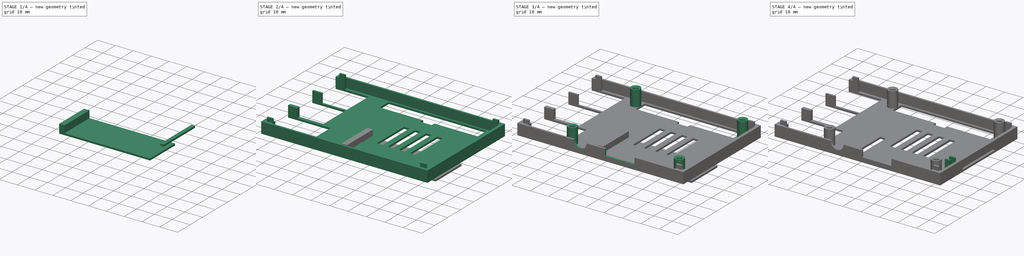
[diagram: build sequence overview — one tinted view per stage of 4, left to right]
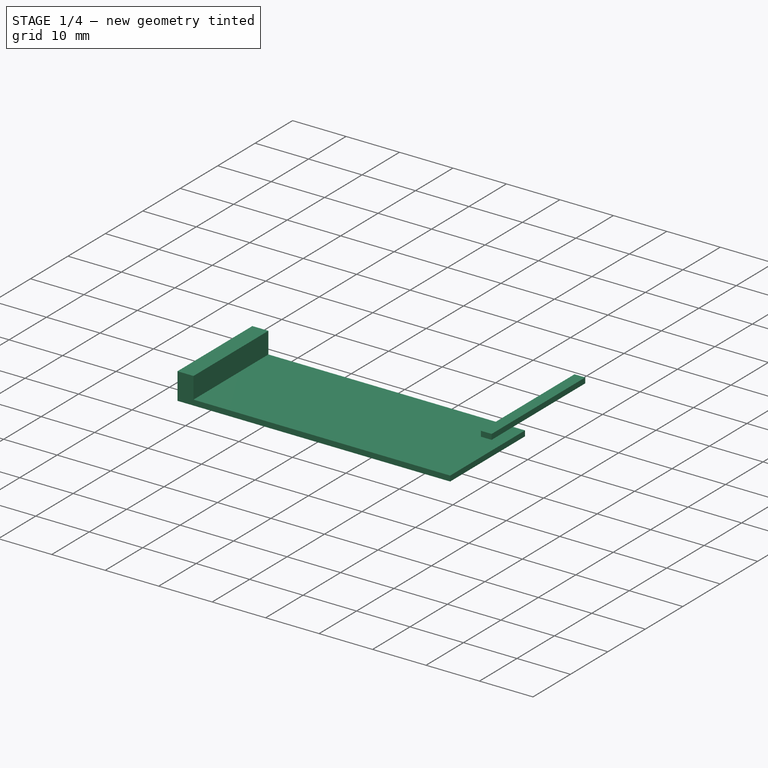
[diagram: stage 1 of 4 — iso view after this stage's code; geometry added in this stage tinted green]
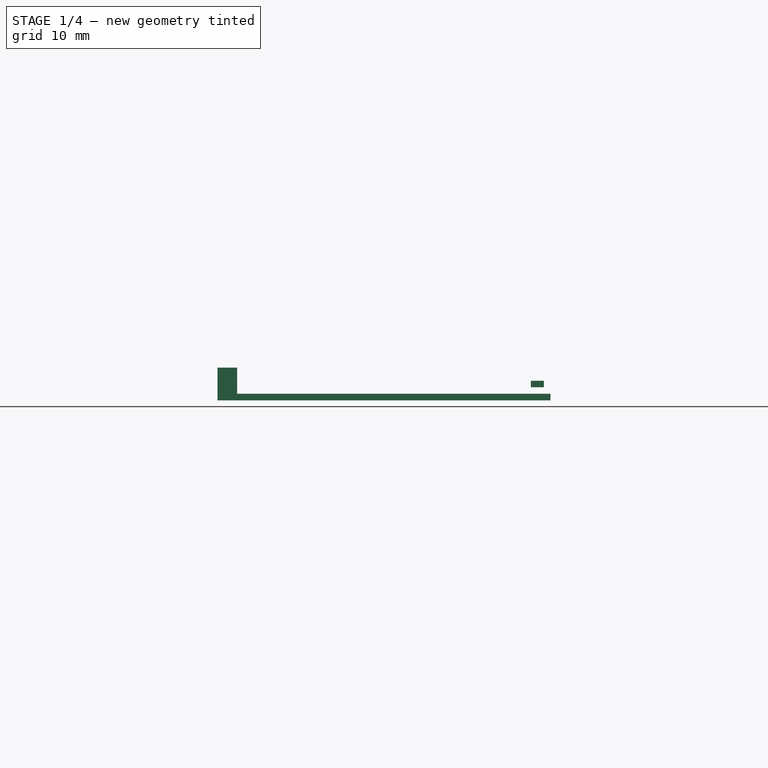
[diagram: stage 1 of 4 — front view after this stage's code; geometry added in this stage tinted green]
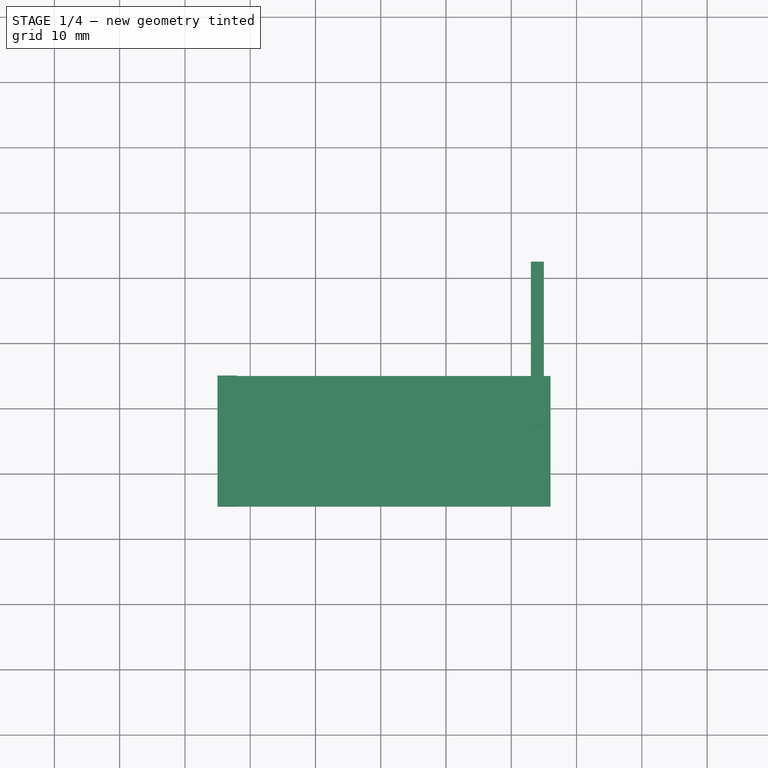
[diagram: stage 1 of 4 — top view after this stage's code; geometry added in this stage tinted green]
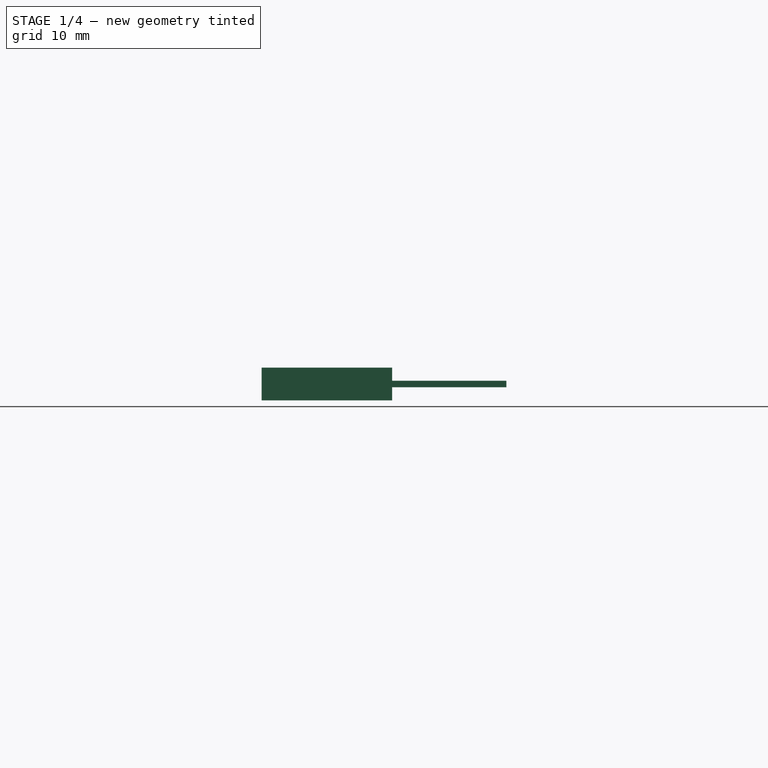
[diagram: stage 1 of 4 — right view after this stage's code; geometry added in this stage tinted green]
FCSTD DOCUMENT  (FreeCAD 0.19RUnknown)
Label: pi_top_with_ribbon_slot
License: All rights reserved
LicenseURL: http://en.wikipedia.org/wiki/All_rights_reserved
objects: Sketcher::SketchObject×6, PartDesign::Pad×5, Part::Box×3, Part::Cut×2, PartDesign::Pocket×1, PartDesign::Chamfer×1, Part::Fillet×1, Part::MultiFuse×1
note: 26 computed .brp shape members not serialized (recipe doc carries the construction recipe); baked Part::Feature solids carry a one-line shape summary decoded from their .brp

FEATURE [Part::Box] Box  label="Würfel"
  AttacherType = Attacher::AttachEngine3D
  Height = 1
  Length = 2
  Placement = pos=(43,-12.5,1) rot=(0,0,1;0rad)
  Width = 25
FEATURE [Part::Box] Box001  label="Würfel001"
  AttacherType = Attacher::AttachEngine3D
  Height = 1
  Length = 51
  Placement = pos=(-5,-25,-1) rot=(0,0,1;0rad)
  Width = 20
FEATURE [Part::Box] Box002  label="Würfel002"
  AttacherType = Attacher::AttachEngine3D
  Height = 5
  Length = 3
  Placement = pos=(-5,-25,-1) rot=(0,0,1;0rad)
  Width = 20
FEATURE [Part::MultiFuse] Fusion  label="wire channel"
  Shapes = -> [Box001,Box002]
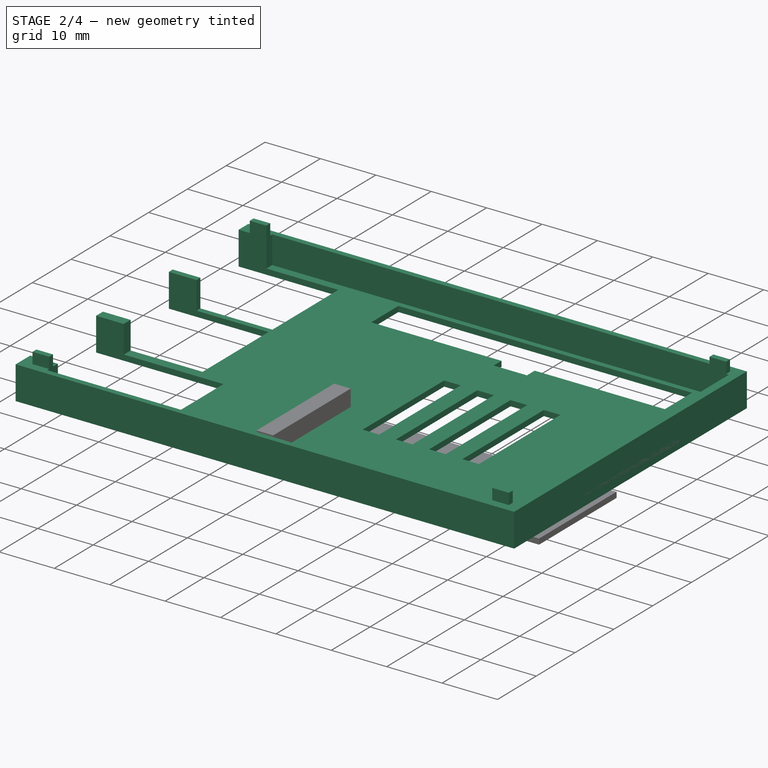
[diagram: stage 2 of 4 — iso view after this stage's code; geometry added in this stage tinted green]
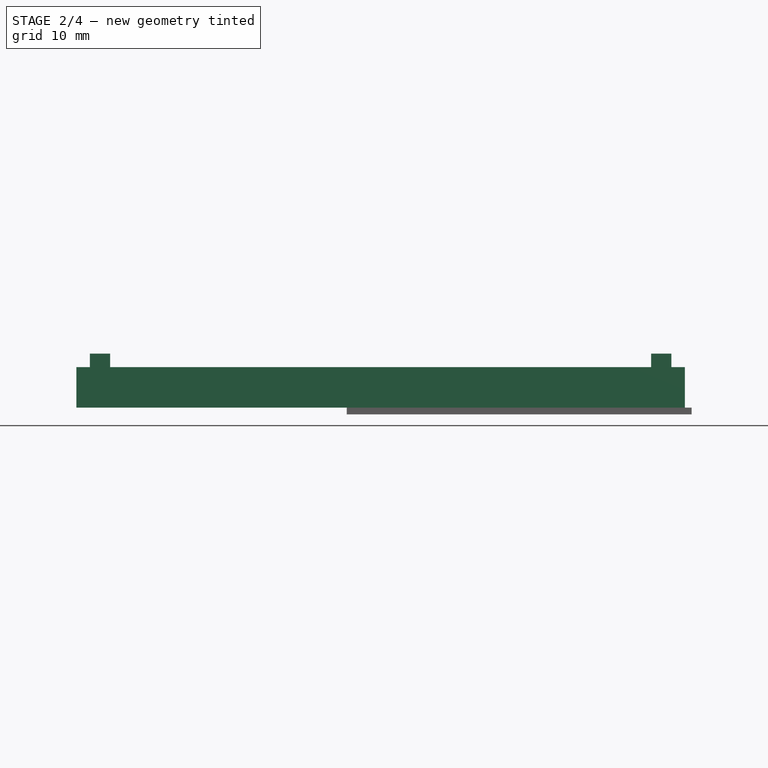
[diagram: stage 2 of 4 — front view after this stage's code; geometry added in this stage tinted green]
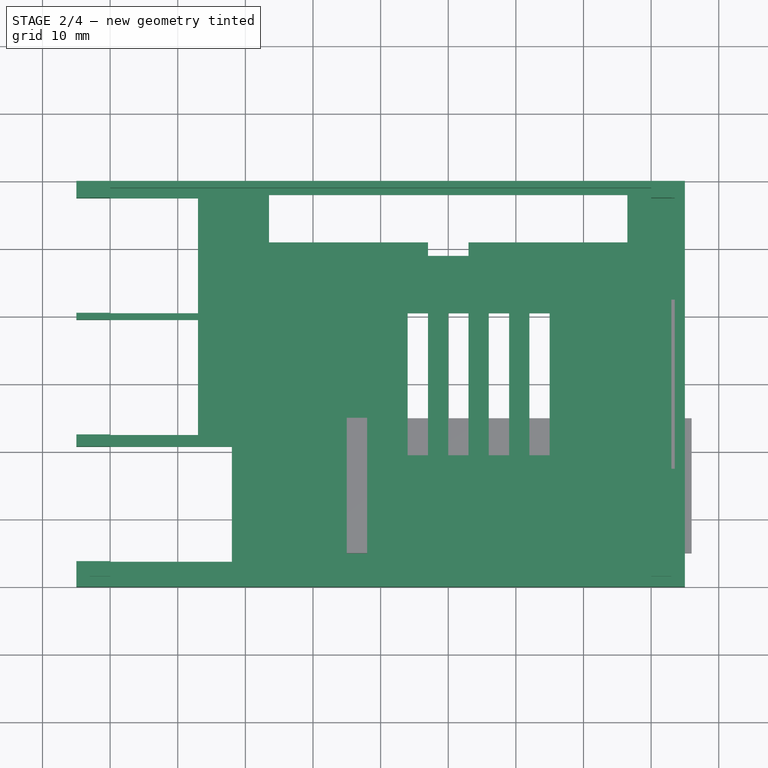
[diagram: stage 2 of 4 — top view after this stage's code; geometry added in this stage tinted green]
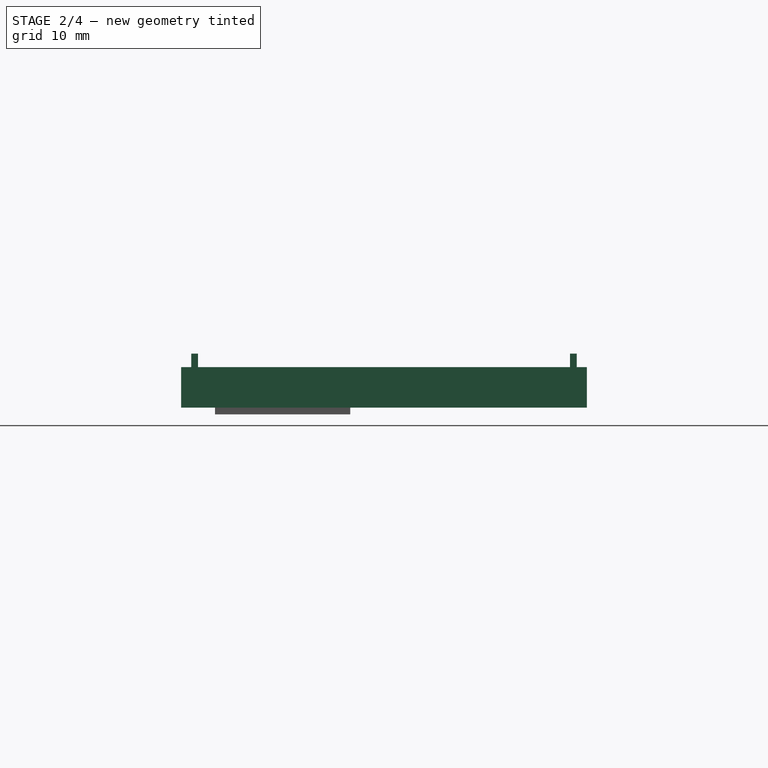
[diagram: stage 2 of 4 — right view after this stage's code; geometry added in this stage tinted green]
FEATURE [Sketcher::SketchObject] Sketch
  MapMode = 5
  sketch-geometry (59):
    g0: LineSegment StartX=-45 StartY=30 StartZ=0 EndX=45 EndY=30 EndZ=0
    g1: LineSegment StartX=45 StartY=30 StartZ=0 EndX=45 EndY=-30 EndZ=0
    g2: LineSegment StartX=45 StartY=-30 StartZ=0 EndX=-45 EndY=-30 EndZ=0
    g3: LineSegment StartX=36.5 StartY=21 StartZ=0 EndX=36.5 EndY=28 EndZ=0
    g4: LineSegment StartX=36.5 StartY=28 StartZ=0 EndX=-16.5 EndY=28 EndZ=0
    g5: LineSegment StartX=-16.5 StartY=28 StartZ=0 EndX=-16.5 EndY=21 EndZ=0
    g6: LineSegment StartX=4 StartY=10.5 StartZ=0 EndX=7 EndY=10.5 EndZ=0
    g7: LineSegment StartX=7 StartY=10.5 StartZ=0 EndX=7 EndY=-10.5 EndZ=0
    g8: LineSegment StartX=7 StartY=-10.5 StartZ=0 EndX=4 EndY=-10.5 EndZ=0
    g9: LineSegment StartX=4 StartY=-10.5 StartZ=0 EndX=4 EndY=10.5 EndZ=0
    g10: LineSegment StartX=10 StartY=10.5 StartZ=0 EndX=13 EndY=10.5 EndZ=0
    g11: LineSegment StartX=13 StartY=10.5 StartZ=0 EndX=13 EndY=-10.5 EndZ=0
    g12: LineSegment StartX=13 StartY=-10.5 StartZ=0 EndX=10 EndY=-10.5 EndZ=0
    g13: LineSegment StartX=10 StartY=-10.5 StartZ=0 EndX=10 EndY=10.5 EndZ=0
    g14: LineSegment StartX=16 StartY=10.5 StartZ=0 EndX=19 EndY=10.5 EndZ=0
    g15: LineSegment StartX=19 StartY=10.5 StartZ=0 EndX=19 EndY=-10.5 EndZ=0
    g16: LineSegment StartX=19 StartY=-10.5 StartZ=0 EndX=16 EndY=-10.5 EndZ=0
    g17: LineSegment StartX=16 StartY=-10.5 StartZ=0 EndX=16 EndY=10.5 EndZ=0
    g18: LineSegment StartX=22 StartY=10.5 StartZ=0 EndX=25 EndY=10.5 EndZ=0
    g19: LineSegment StartX=25 StartY=10.5 StartZ=0 EndX=25 EndY=-10.5 EndZ=0
    g20: LineSegment StartX=25 StartY=-10.5 StartZ=0 EndX=22 EndY=-10.5 EndZ=0
    g21: LineSegment StartX=22 StartY=-10.5 StartZ=0 EndX=22 EndY=10.5 EndZ=0
    g22: LineSegment StartX=-45 StartY=30 StartZ=0 EndX=-45 EndY=27.5 EndZ=0
    g23: LineSegment StartX=-45 StartY=27.5 StartZ=0 EndX=-27 EndY=27.5 EndZ=0
    g24: LineSegment StartX=-27 StartY=27.5 StartZ=0 EndX=-27 EndY=10.5 EndZ=0
    g25: LineSegment StartX=-27 StartY=10.5 StartZ=0 EndX=-45 EndY=10.5 EndZ=0
    g26: LineSegment StartX=-45 StartY=10.5 StartZ=0 EndX=-45 EndY=9.5 EndZ=0
    g27: LineSegment StartX=-45 StartY=9.5 StartZ=0 EndX=-27 EndY=9.5 EndZ=0
    g28: LineSegment StartX=-27 StartY=9.5 StartZ=0 EndX=-27 EndY=-7.5 EndZ=0
    g29: LineSegment StartX=-27 StartY=-7.5 StartZ=0 EndX=-45 EndY=-7.5 EndZ=0
    g30: LineSegment StartX=-45 StartY=-7.5 StartZ=0 EndX=-45 EndY=-9.25 EndZ=0
    g31: LineSegment StartX=-45 StartY=-9.25 StartZ=0 EndX=-22 EndY=-9.25 EndZ=0
    g32: LineSegment StartX=-22 StartY=-9.25 StartZ=0 EndX=-22 EndY=-26.25 EndZ=0
    g33: LineSegment StartX=-22 StartY=-26.25 StartZ=0 EndX=-45 EndY=-26.25 EndZ=0
    g34: LineSegment StartX=-45 StartY=-26.25 StartZ=0 EndX=-45 EndY=-30 EndZ=0
    g35: LineSegment [constr] StartX=-45 StartY=27.5 StartZ=0 EndX=-45 EndY=10.5 EndZ=0
    g36: LineSegment [constr] StartX=-45 StartY=9.5 StartZ=0 EndX=-45 EndY=-7.5 EndZ=0
    g37: LineSegment [constr] StartX=-45 StartY=-9.25 StartZ=0 EndX=-45 EndY=-26.25 EndZ=0
    g38: GeomPoint [constr] X=-45 Y=19 Z=0
    g39: GeomPoint [constr] X=-45 Y=1 Z=0
    g40: LineSegment [constr] StartX=-27 StartY=10.5 StartZ=0 EndX=-27 EndY=9.5 EndZ=0
    g41: GeomPoint [constr] X=-45 Y=-28 Z=0
    g42: GeomPoint [constr] X=-45 Y=-17.75 Z=0
    g43: GeomPoint [constr] X=10 Y=28 Z=0
    g44: LineSegment [constr] StartX=7 StartY=10.5 StartZ=0 EndX=10 EndY=10.5 EndZ=0
    g45: LineSegment [constr] StartX=13 StartY=10.5 StartZ=0 EndX=16 EndY=10.5 EndZ=0
    g46: LineSegment [constr] StartX=19 StartY=10.5 StartZ=0 EndX=22 EndY=10.5 EndZ=0
    g47: LineSegment [constr] StartX=7 StartY=-10.5 StartZ=0 EndX=10 EndY=-10.5 EndZ=0
    g48: LineSegment [constr] StartX=13 StartY=-10.5 StartZ=0 EndX=16 EndY=-10.5 EndZ=0
    g49: LineSegment [constr] StartX=19 StartY=-10.5 StartZ=0 EndX=22 EndY=-10.5 EndZ=0
    g50: GeomPoint [constr] X=25 Y=0 Z=0
    g51: GeomPoint [constr] X=36.5 Y=24.5 Z=0
    g52: LineSegment StartX=-16.5 StartY=21 StartZ=0 EndX=7 EndY=21 EndZ=0
    g53: LineSegment StartX=7 StartY=21 StartZ=0 EndX=7 EndY=19 EndZ=0
    g54: LineSegment StartX=7 StartY=19 StartZ=0 EndX=13 EndY=19 EndZ=0
    g55: LineSegment StartX=13 StartY=19 StartZ=0 EndX=13 EndY=21 EndZ=0
    g56: LineSegment StartX=13 StartY=21 StartZ=0 EndX=36.5 EndY=21 EndZ=0
    g57: LineSegment [constr] StartX=7 StartY=21 StartZ=0 EndX=13 EndY=21 EndZ=0
    g58: GeomPoint [constr] X=10 Y=21 Z=0
  constraints (158):
    c: Coincident(g0,g1)
    c: Coincident(g1,g2)
    c: Horizontal(g0)
    c: Horizontal(g2)
    c: Vertical(g1)
    c: Coincident(g3,g4)
    c: Coincident(g4,g5)
    c: Horizontal(g4)
    c: Vertical(g3)
    c: Vertical(g5)
    c: Coincident(g6,g7)
    c: Coincident(g7,g8)
    c: Coincident(g8,g9)
    c: Coincident(g9,g6)
    c: Horizontal(g6)
    c: Horizontal(g8)
    c: Vertical(g7)
    c: Vertical(g9)
    c: Coincident(g10,g11)
    c: Coincident(g11,g12)
    c: Coincident(g12,g13)
    c: Coincident(g13,g10)
    c: Horizontal(g10)
    c: Horizontal(g12)
    c: Vertical(g11)
    c: Vertical(g13)
    c: Coincident(g14,g15)
    c: Coincident(g15,g16)
    c: Coincident(g16,g17)
    c: Coincident(g17,g14)
    c: Horizontal(g14)
    c: Horizontal(g16)
    c: Vertical(g15)
    c: Vertical(g17)
    c: Coincident(g18,g19)
    c: Coincident(g19,g20)
    c: Coincident(g20,g21)
    c: Coincident(g21,g18)
    c: Horizontal(g18)
    c: Horizontal(g20)
    c: Vertical(g19)
    c: Vertical(g21)
    c: Coincident(g22,g0)
    c: Vertical(g22)
    c: Coincident(g23,g22)
    c: Horizontal(g23)
    c: Vertical(g24)
    c: Horizontal(g25)
    c: Vertical(g26)
    c: Horizontal(g27)
    c: Vertical(g28)
    c: Horizontal(g29)
    c: Vertical(g30)
    c: Horizontal(g31)
    c: Vertical(g32)
    c: Horizontal(g33)
    c: Coincident(g34,g2)
    c: Vertical(g34)
    c: Coincident(g35,g22)
    c: Coincident(g35,g25)
    c: Vertical(g35)
    c: Coincident(g36,g26)
    c: Coincident(g36,g29)
    c: Vertical(g36)
    c: Coincident(g37,g30)
    c: Coincident(g37,g33)
    c: Vertical(g37)
    c: Coincident(g33,g34)
    c: Coincident(g30,g29)
    c: Coincident(g30,g31)
    c: Coincident(g26,g27)
    c: Coincident(g26,g25)
    c: Coincident(g33,g32)
    c: Coincident(g31,g32)
    c: Coincident(g29,g28)
    c: Coincident(g27,g28)
    c: Coincident(g23,g24)
    c: Coincident(g25,g24)
    c: DistanceX(g0,g0) = 90
    c: DistanceY(g1,g0) = 60
    c: Symmetric(g0,g0,g-2)
    c: Symmetric(g0,g1,g-1)
    c: PointOnObject(g38,g35)
    c: PointOnObject(g39,g36)
    c: Symmetric(g22,g25,g38)
    c: Symmetric(g26,g29,g39)
    c: DistanceY(g24,g23) = 17
    c: DistanceY(g28,g27) = 17
    c: DistanceY(g32,g31) = 17
    c: DistanceX(g33,g32) = 23
    c: Coincident(g40,g24)
    c: Coincident(g40,g27)
    c: Vertical(g40)
    c: DistanceX(g25,g24) = 18
    c: PointOnObject(g41,g34)
    c: DistanceY(g2,g41) = 2
    c: PointOnObject(g42,g37)
    c: Symmetric(g30,g33,g42)
    c: DistanceY(g41,g42) = 10.25
    c: DistanceY(g41,g39) = 29
    c: DistanceY(g41,g38) = 47
    c: DistanceX(g4,g3) = 53
    c: DistanceY(g5,g4) = 7
    c: PointOnObject(g43,g4)
    c: Symmetric(g4,g3,g43)
    c: DistanceX(g43,g0) = 35
    c: DistanceX(g6,g6) = 3
    c: DistanceX(g10,g10) = 3
    c: DistanceX(g14,g14) = 3
    c: DistanceX(g18,g18) = 3
    c: Coincident(g44,g6)
    c: Coincident(g44,g10)
    c: Coincident(g45,g10)
    c: Coincident(g45,g14)
    c: Coincident(g46,g14)
    c: Coincident(g46,g18)
    c: Coincident(g47,g7)
    c: Coincident(g47,g12)
    c: Coincident(g48,g11)
    c: Coincident(g48,g16)
    c: Coincident(g49,g15)
    c: Coincident(g49,g20)
    c: Horizontal(g47)
    c: Horizontal(g48)
    c: Horizontal(g49)
    c: Horizontal(g46)
    c: Horizontal(g45)
    c: Horizontal(g44)
    c: DistanceX(g6,g10) = 3
    c: DistanceX(g10,g14) = 3
    c: DistanceX(g14,g18) = 3
    c: DistanceY(g19,g18) = 21
    c: PointOnObject(g50,g19)
    c: Symmetric(g18,g19,g50)
    c: PointOnObject(g50,g-1)
    c: DistanceX(g50,g1) = 20
    c: PointOnObject(g51,g3)
    c: Symmetric(g3,g3,g51)
    c: DistanceY(g51,g0) = 5.5
    c: Coincident(g52,g5)
    c: Horizontal(g52)
    c: Coincident(g53,g52)
    c: Coincident(g54,g53)
    c: Horizontal(g54)
    c: Coincident(g55,g54)
    c: Coincident(g56,g55)
    c: Coincident(g56,g3)
    c: Horizontal(g56)
    c: Vertical(g53)
    c: Vertical(g55)
    c: Coincident(g57,g52)
    c: Coincident(g57,g55)
    c: Horizontal(g57)
    c: PointOnObject(g58,g57)
    c: Symmetric(g52,g55,g58)
    c: DistanceX(g53,g54) = 6
    c: DistanceY(g53,g52) = 2
    c: Symmetric(g5,g3,g58)
FEATURE [PartDesign::Pad] Pad
  Length = 1
  Length2 = 100
  Profile = -> Sketch
  Type = 0
FEATURE [Sketcher::SketchObject] Sketch001
  MapMode = 5
  Placement = pos=(0,0,1) rot=(0,0,1;0rad)
  Support = -> [Pad]
  sketch-geometry (34):
    g0: LineSegment StartX=-45 StartY=-7.5 StartZ=0 EndX=-40 EndY=-7.5 EndZ=0
    g1: LineSegment StartX=-40 StartY=-7.5 StartZ=0 EndX=-40 EndY=-9.25 EndZ=0
    g2: LineSegment StartX=-40 StartY=-9.25 StartZ=0 EndX=-45 EndY=-9.25 EndZ=0
    g3: LineSegment StartX=-45 StartY=-9.25 StartZ=0 EndX=-45 EndY=-7.5 EndZ=0
    g4: LineSegment StartX=-45 StartY=10.5 StartZ=0 EndX=-40 EndY=10.5 EndZ=0
    g5: LineSegment StartX=-40 StartY=10.5 StartZ=0 EndX=-40 EndY=9.5 EndZ=0
    g6: LineSegment StartX=-40 StartY=9.5 StartZ=0 EndX=-45 EndY=9.5 EndZ=0
    g7: LineSegment StartX=-45 StartY=9.5 StartZ=0 EndX=-45 EndY=10.5 EndZ=0
    g8: LineSegment StartX=-45 StartY=30 StartZ=0 EndX=45 EndY=30 EndZ=0
    g9: LineSegment StartX=45 StartY=30 StartZ=0 EndX=45 EndY=-30 EndZ=0
    g10: LineSegment StartX=45 StartY=-30 StartZ=0 EndX=-45 EndY=-30 EndZ=0
    g11: LineSegment StartX=-45 StartY=-30 StartZ=0 EndX=-45 EndY=-26.25 EndZ=0
    g12: LineSegment StartX=-45 StartY=-26.25 StartZ=0 EndX=-40 EndY=-26.25 EndZ=0
    g13: LineSegment StartX=-40 StartY=-26.25 StartZ=0 EndX=-40 EndY=-29 EndZ=0
    g14: LineSegment StartX=-40 StartY=-29 StartZ=0 EndX=40 EndY=-29 EndZ=0
    g15: LineSegment StartX=40 StartY=29 StartZ=0 EndX=-40 EndY=29 EndZ=0
    g16: LineSegment StartX=-40 StartY=29 StartZ=0 EndX=-40 EndY=27.5 EndZ=0
    g17: LineSegment StartX=-40 StartY=27.5 StartZ=0 EndX=-45 EndY=27.5 EndZ=0
    g18: LineSegment StartX=-45 StartY=27.5 StartZ=0 EndX=-45 EndY=30 EndZ=0
    g19: LineSegment [constr] StartX=-45 StartY=27.5 StartZ=0 EndX=-45 EndY=10.5 EndZ=0
    g20: LineSegment [constr] StartX=-45 StartY=9.5 StartZ=0 EndX=-45 EndY=-7.5 EndZ=0
    g21: LineSegment [constr] StartX=-45 StartY=-9.25 StartZ=0 EndX=-45 EndY=-26.25 EndZ=0
    g22: LineSegment [constr] StartX=-40 StartY=27.5 StartZ=0 EndX=-40 EndY=10.5 EndZ=0
    g23: LineSegment [constr] StartX=-40 StartY=9.5 StartZ=0 EndX=-40 EndY=-7.5 EndZ=0
    g24: LineSegment [constr] StartX=-40 StartY=-9.25 StartZ=0 EndX=-40 EndY=-26.25 EndZ=0
    g25: GeomPoint [constr] X=-45 Y=19 Z=0
    g26: GeomPoint [constr] X=-45 Y=1 Z=0
    g27: GeomPoint [constr] X=-45 Y=-17.75 Z=0
    g28: GeomPoint [constr] X=-45 Y=-28 Z=0
    g29: LineSegment StartX=40 StartY=29 StartZ=0 EndX=40 EndY=27.5 EndZ=0
    g30: LineSegment StartX=40 StartY=27.5 StartZ=0 EndX=43.5 EndY=27.5 EndZ=0
    g31: LineSegment StartX=43.5 StartY=27.5 StartZ=0 EndX=43.5 EndY=-27.5 EndZ=0
    g32: LineSegment StartX=43.5 StartY=-27.5 StartZ=0 EndX=40 EndY=-27.5 EndZ=0
    g33: LineSegment StartX=40 StartY=-27.5 StartZ=0 EndX=40 EndY=-29 EndZ=0
  constraints (91):
    c: Coincident(g0,g1)
    c: Coincident(g1,g2)
    c: Coincident(g2,g3)
    c: Coincident(g3,g0)
    c: Horizontal(g0)
    c: Horizontal(g2)
    c: Vertical(g1)
    c: Vertical(g3)
    c: Coincident(g4,g5)
    c: Coincident(g5,g6)
    c: Coincident(g6,g7)
    c: Coincident(g7,g4)
    c: Horizontal(g4)
    c: Horizontal(g6)
    c: Vertical(g5)
    c: Vertical(g7)
    c: Horizontal(g8)
    c: Coincident(g8,g9)
    c: Vertical(g9)
    c: Coincident(g9,g10)
    c: Horizontal(g10)
    c: Coincident(g10,g11)
    c: Vertical(g11)
    c: Coincident(g11,g12)
    c: Horizontal(g12)
    c: Coincident(g12,g13)
    c: Vertical(g13)
    c: Coincident(g13,g14)
    c: Horizontal(g14)
    c: Horizontal(g15)
    c: Coincident(g15,g16)
    c: Vertical(g16)
    c: Coincident(g16,g17)
    c: Horizontal(g17)
    c: Coincident(g17,g18)
    c: Coincident(g18,g8)
    c: Vertical(g18)
    c: DistanceX(g8,g8) = 90
    c: DistanceY(g9,g8) = 60
    c: Symmetric(g8,g8,g-2)
    c: Symmetric(g8,g9,g-1)
    c: Coincident(g19,g17)
    c: Coincident(g19,g4)
    c: Vertical(g19)
    c: Coincident(g20,g6)
    c: Coincident(g20,g0)
    c: Vertical(g20)
    c: Coincident(g21,g2)
    c: Coincident(g21,g11)
    c: Vertical(g21)
    c: Coincident(g22,g16)
    c: Coincident(g22,g4)
    c: Coincident(g23,g5)
    c: Coincident(g23,g0)
    c: Coincident(g24,g1)
    c: Coincident(g24,g12)
    c: Vertical(g22)
    c: Vertical(g23)
    c: Vertical(g24)
    c: DistanceY(g15,g8) = 1
    c: DistanceX(g8,g15) = 5
    c: Symmetric(g15,g15,g-2)
    c: Symmetric(g15,g14,g-1)
    c: PointOnObject(g25,g19)
    c: PointOnObject(g26,g20)
    c: PointOnObject(g27,g21)
    c: PointOnObject(g28,g11)
    c: DistanceY(g10,g28) = 2
    c: Symmetric(g2,g11,g27)
    c: DistanceY(g28,g27) = 10.25
    c: DistanceY(g11,g2) = 17
    c: Symmetric(g6,g0,g26)
    c: DistanceY(g0,g6) = 17
    c: DistanceY(g28,g26) = 29
    c: Symmetric(g17,g4,g25)
    c: DistanceY(g4,g17) = 17
    c: DistanceY(g28,g25) = 47
    c: Coincident(g29,g15)
    c: Vertical(g29)
    c: Coincident(g30,g29)
    c: Coincident(g30,g31)
    c: Vertical(g31)
    c: Coincident(g31,g32)
    c: Horizontal(g32)
    c: Coincident(g32,g33)
    c: Coincident(g33,g14)
    c: Vertical(g33)
    c: DistanceX(g32,g31) = 3.5
    c: Horizontal(g30)
    c: Symmetric(g31,g30,g-1)
    c: DistanceY(g29,g15) = 1.5
FEATURE [PartDesign::Pad] Pad001
  Length = 5
  Length2 = 100
  Profile = -> Sketch001
  Type = 0
FEATURE [Sketcher::SketchObject] Sketch002
  MapMode = 5
  Placement = pos=(0,0,6) rot=(0,0,1;0rad)
  Support = -> [Pad001]
  sketch-geometry (24):
    g0: LineSegment StartX=40 StartY=28.5 StartZ=0 EndX=43 EndY=28.5 EndZ=0
    g1: LineSegment StartX=43 StartY=28.5 StartZ=0 EndX=43 EndY=27.5 EndZ=0
    g2: LineSegment StartX=43 StartY=27.5 StartZ=0 EndX=40 EndY=27.5 EndZ=0
    g3: LineSegment StartX=40 StartY=27.5 StartZ=0 EndX=40 EndY=28.5 EndZ=0
    g4: LineSegment StartX=-43 StartY=28.5 StartZ=0 EndX=-40 EndY=28.5 EndZ=0
    g5: LineSegment StartX=-40 StartY=28.5 StartZ=0 EndX=-40 EndY=27.5 EndZ=0
    g6: LineSegment StartX=-40 StartY=27.5 StartZ=0 EndX=-43 EndY=27.5 EndZ=0
    g7: LineSegment StartX=-43 StartY=27.5 StartZ=0 EndX=-43 EndY=28.5 EndZ=0
    g8: LineSegment StartX=-43 StartY=-27.5 StartZ=0 EndX=-40 EndY=-27.5 EndZ=0
    g9: LineSegment StartX=-40 StartY=-27.5 StartZ=0 EndX=-40 EndY=-28.5 EndZ=0
    g10: LineSegment StartX=-40 StartY=-28.5 StartZ=0 EndX=-43 EndY=-28.5 EndZ=0
    g11: LineSegment StartX=-43 StartY=-28.5 StartZ=0 EndX=-43 EndY=-27.5 EndZ=0
    g12: LineSegment StartX=40 StartY=-27.5 StartZ=0 EndX=43 EndY=-27.5 EndZ=0
    g13: LineSegment StartX=43 StartY=-27.5 StartZ=0 EndX=43 EndY=-28.5 EndZ=0
    g14: LineSegment StartX=43 StartY=-28.5 StartZ=0 EndX=40 EndY=-28.5 EndZ=0
    g15: LineSegment StartX=40 StartY=-28.5 StartZ=0 EndX=40 EndY=-27.5 EndZ=0
    g16: LineSegment [constr] StartX=-40 StartY=28.5 StartZ=0 EndX=40 EndY=28.5 EndZ=0
    g17: LineSegment [constr] StartX=43 StartY=27.5 StartZ=0 EndX=43 EndY=-27.5 EndZ=0
    g18: LineSegment [constr] StartX=40 StartY=-28.5 StartZ=0 EndX=-40 EndY=-28.5 EndZ=0
    g19: LineSegment [constr] StartX=-43 StartY=-27.5 StartZ=0 EndX=-43 EndY=27.5 EndZ=0
    g20: LineSegment [constr] StartX=-40 StartY=27.5 StartZ=0 EndX=40 EndY=27.5 EndZ=0
    g21: LineSegment [constr] StartX=40 StartY=27.5 StartZ=0 EndX=40 EndY=-27.5 EndZ=0
    g22: LineSegment [constr] StartX=40 StartY=-27.5 StartZ=0 EndX=-40 EndY=-27.5 EndZ=0
    g23: LineSegment [constr] StartX=-40 StartY=27.5 StartZ=0 EndX=-40 EndY=-27.5 EndZ=0
  constraints (64):
    c: Coincident(g0,g1)
    c: Coincident(g1,g2)
    c: Coincident(g2,g3)
    c: Coincident(g3,g0)
    c: Horizontal(g0)
    c: Horizontal(g2)
    c: Vertical(g1)
    c: Vertical(g3)
    c: Coincident(g4,g5)
    c: Coincident(g5,g6)
    c: Coincident(g6,g7)
    c: Coincident(g7,g4)
    c: Horizontal(g4)
    c: Horizontal(g6)
    c: Vertical(g5)
    c: Vertical(g7)
    c: Coincident(g8,g9)
    c: Coincident(g9,g10)
    c: Coincident(g10,g11)
    c: Coincident(g11,g8)
    c: Horizontal(g8)
    c: Horizontal(g10)
    c: Vertical(g9)
    c: Vertical(g11)
    c: Coincident(g12,g13)
    c: Coincident(g13,g14)
    c: Coincident(g14,g15)
    c: Coincident(g15,g12)
    c: Horizontal(g12)
    c: Horizontal(g14)
    c: Vertical(g13)
    c: Vertical(g15)
    c: Coincident(g16,g4)
    c: Coincident(g16,g0)
    c: Horizontal(g16)
    c: Coincident(g17,g1)
    c: Coincident(g17,g12)
    c: Vertical(g17)
    c: Coincident(g18,g14)
    c: Coincident(g18,g9)
    c: Horizontal(g18)
    c: Coincident(g19,g6)
    c: Vertical(g19)
    c: Coincident(g20,g5)
    c: Coincident(g20,g2)
    c: Horizontal(g20)
    c: Coincident(g21,g2)
    c: Coincident(g21,g12)
    c: Vertical(g21)
    c: Coincident(g22,g12)
    c: Coincident(g22,g8)
    c: Horizontal(g22)
    c: Coincident(g23,g5)
    c: Coincident(g23,g8)
    c: Vertical(g23)
    c: Coincident(g8,g19)
    c: Symmetric(g5,g2,g-2)
    c: Symmetric(g5,g8,g-1)
    c: Symmetric(g4,g0,g-2)
    c: Symmetric(g4,g10,g-1)
    c: DistanceX(g4,g4) = 3
    c: DistanceY(g6,g4) = 1
    c: DistanceX(g5,g-1) = 40
    c: DistanceY(g-1,g5) = 27.5
FEATURE [PartDesign::Pad] Pad002
  Length = 2
  Length2 = 100
  Profile = -> Sketch002
  Type = 0
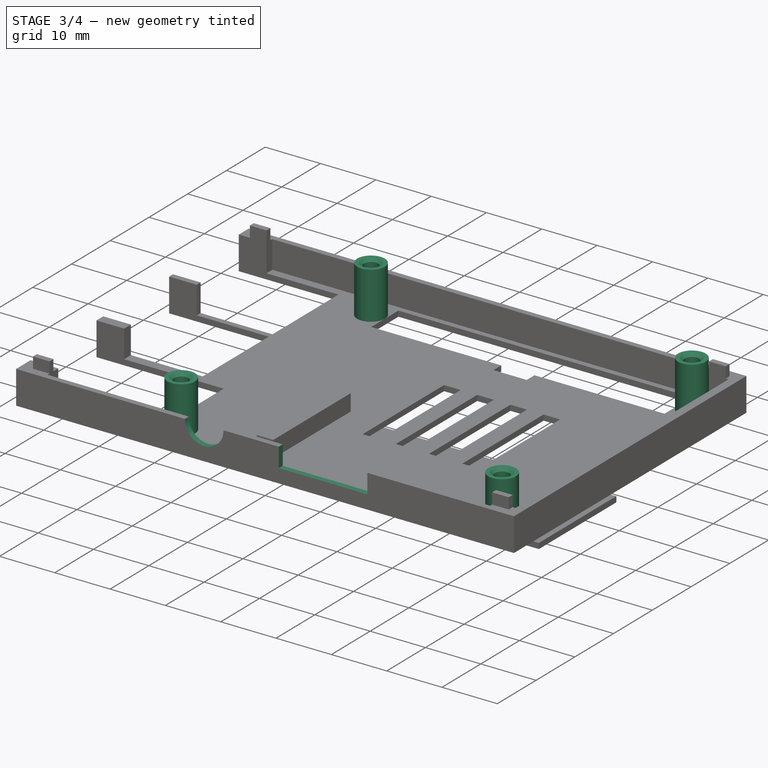
[diagram: stage 3 of 4 — iso view after this stage's code; geometry added in this stage tinted green]
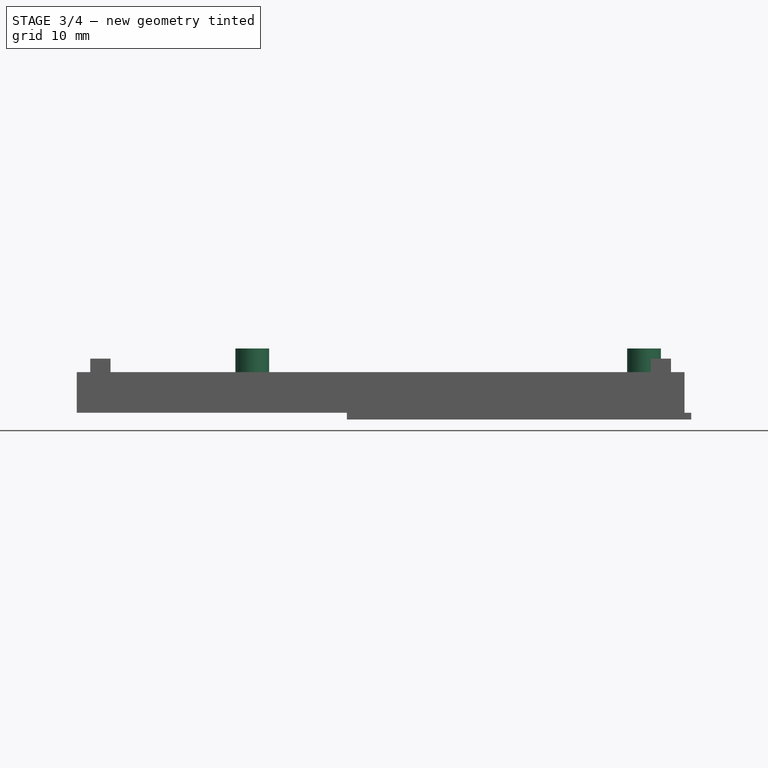
[diagram: stage 3 of 4 — front view after this stage's code; geometry added in this stage tinted green]
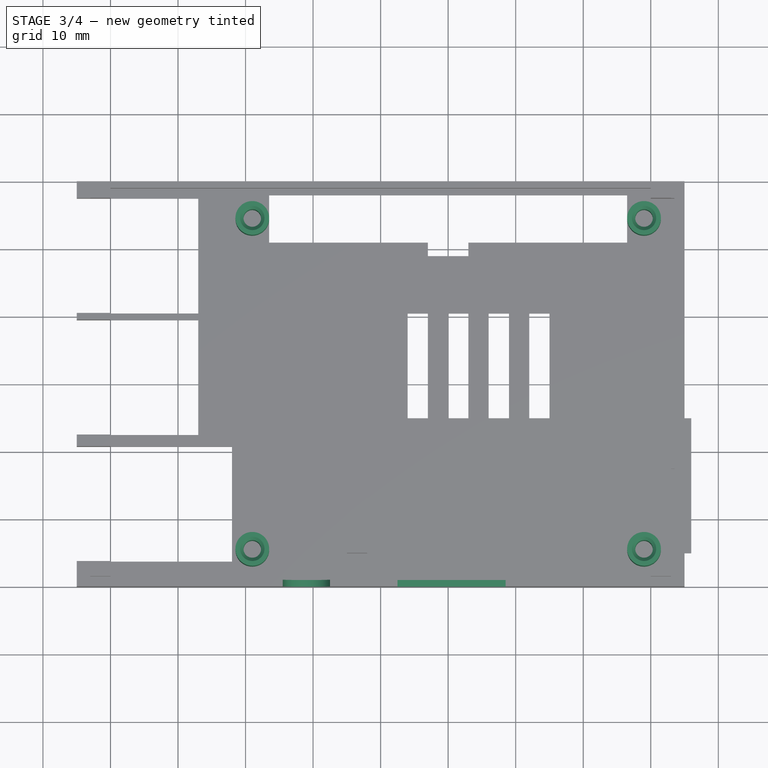
[diagram: stage 3 of 4 — top view after this stage's code; geometry added in this stage tinted green]
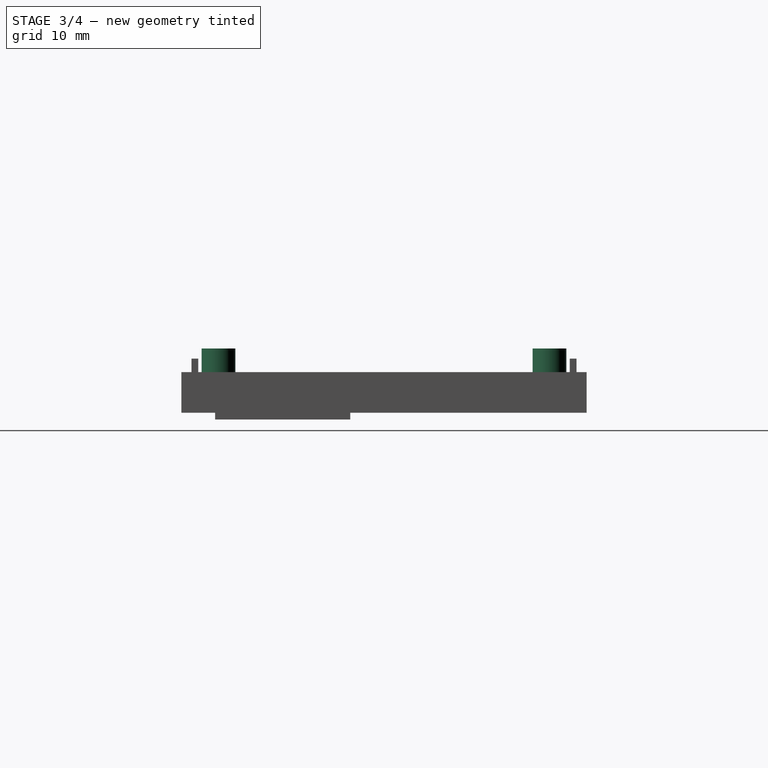
[diagram: stage 3 of 4 — right view after this stage's code; geometry added in this stage tinted green]
FEATURE [Sketcher::SketchObject] Sketch003
  MapMode = 5
  Placement = pos=(0,0,1) rot=(0,0,1;0rad)
  Support = -> [Pad002]
  sketch-geometry (12):
    g0: Circle CenterX=-19 CenterY=24.5 CenterZ=0 NormalX=0 NormalY=0 NormalZ=1 AngleXU=0 Radius=2.5
    g1: Circle CenterX=39 CenterY=24.5 CenterZ=0 NormalX=0 NormalY=0 NormalZ=1 AngleXU=0 Radius=2.5
    g2: Circle CenterX=-19 CenterY=-24.5 CenterZ=0 NormalX=0 NormalY=0 NormalZ=1 AngleXU=0 Radius=2.5
    g3: Circle CenterX=39 CenterY=-24.5 CenterZ=0 NormalX=0 NormalY=0 NormalZ=1 AngleXU=0 Radius=2.5
    g4: LineSegment [constr] StartX=-19 StartY=24.5 StartZ=0 EndX=39 EndY=24.5 EndZ=0
    g5: LineSegment [constr] StartX=39 StartY=24.5 StartZ=0 EndX=39 EndY=-24.5 EndZ=0
    g6: LineSegment [constr] StartX=39 StartY=-24.5 StartZ=0 EndX=-19 EndY=-24.5 EndZ=0
    g7: LineSegment [constr] StartX=-19 StartY=-24.5 StartZ=0 EndX=-19 EndY=24.5 EndZ=0
    g8: Circle CenterX=-19 CenterY=24.5 CenterZ=0 NormalX=0 NormalY=0 NormalZ=1 AngleXU=0 Radius=1.3
    g9: Circle CenterX=39 CenterY=24.5 CenterZ=0 NormalX=0 NormalY=0 NormalZ=1 AngleXU=0 Radius=1.3
    g10: Circle CenterX=39 CenterY=-24.5 CenterZ=0 NormalX=0 NormalY=0 NormalZ=1 AngleXU=0 Radius=1.3
    g11: Circle CenterX=-19 CenterY=-24.5 CenterZ=0 NormalX=0 NormalY=0 NormalZ=1 AngleXU=0 Radius=1.3
  constraints (28):
    c: Coincident(g4,g5)
    c: Coincident(g5,g6)
    c: Coincident(g6,g7)
    c: Coincident(g7,g4)
    c: Horizontal(g4)
    c: Horizontal(g6)
    c: Vertical(g5)
    c: Vertical(g7)
    c: Coincident(g4,g0)
    c: Coincident(g5,g3)
    c: Coincident(g4,g1)
    c: Coincident(g2,g6)
    c: Symmetric(g1,g3,g-1)
    c: DistanceX(g2,g3) = 58
    c: DistanceY(g-1,g1) = 24.5
    c: Radius(g0) = 2.5
    c: Equal(g0,g1)
    c: Equal(g0,g3)
    c: Equal(g0,g2)
    c: DistanceX(g-1,g1) = 39
    c: Coincident(g8,g0)
    c: Coincident(g9,g1)
    c: Coincident(g10,g3)
    c: Coincident(g11,g2)
    c: Radius(g8) = 1.3
    c: Equal(g8,g9)
    c: Equal(g8,g10)
    c: Equal(g8,g11)
FEATURE [PartDesign::Pad] Pad003
  Length = 8.5
  Length2 = 100
  Profile = -> Sketch003
  Type = 0
FEATURE [Sketcher::SketchObject] Sketch004
  MapMode = 5
  Placement = pos=(0,-30,0) rot=(1,0,0;1.5708rad)
  Support = -> [Pad003]
  sketch-geometry (6):
    g0: ArcOfCircle CenterX=-11 CenterY=6 CenterZ=0 NormalX=0 NormalY=0 NormalZ=1 AngleXU=0 Radius=3.5 StartAngle=3.14159 EndAngle=6.28319
    g1: LineSegment StartX=-14.5 StartY=6 StartZ=0 EndX=-7.5 EndY=6 EndZ=0
    g2: LineSegment StartX=2.5 StartY=6 StartZ=0 EndX=18.5 EndY=6 EndZ=0
    g3: LineSegment StartX=18.5 StartY=6 StartZ=0 EndX=18.5 EndY=2.5 EndZ=0
    g4: LineSegment StartX=18.5 StartY=2.5 StartZ=0 EndX=2.5 EndY=2.5 EndZ=0
    g5: LineSegment StartX=2.5 StartY=2.5 StartZ=0 EndX=2.5 EndY=6 EndZ=0
  constraints (19):
    c: Coincident(g1,g0)
    c: Coincident(g1,g0)
    c: Horizontal(g1)
    c: Coincident(g2,g3)
    c: Coincident(g3,g4)
    c: Coincident(g4,g5)
    c: Coincident(g5,g2)
    c: Horizontal(g2)
    c: Horizontal(g4)
    c: Vertical(g3)
    c: Vertical(g5)
    c: DistanceY(g-1,g0) = 6
    c: PointOnObject(g0,g1)
    c: Radius(g0) = 3.5
    c: DistanceX(g0,g-1) = 11
    c: DistanceY(g-1,g2) = 6
    c: DistanceX(g4,g3) = 16
    c: DistanceY(g3,g2) = 3.5
    c: DistanceX(g-1,g4) = 2.5
FEATURE [PartDesign::Pocket] Pocket
  Length = 0
  Length2 = 100
  Profile = -> Sketch004
  Type = 2
FEATURE [PartDesign::Chamfer] Chamfer
  Base = -> Pocket [Edge269,Edge268,Edge270,Edge271]
  Size = 0.5
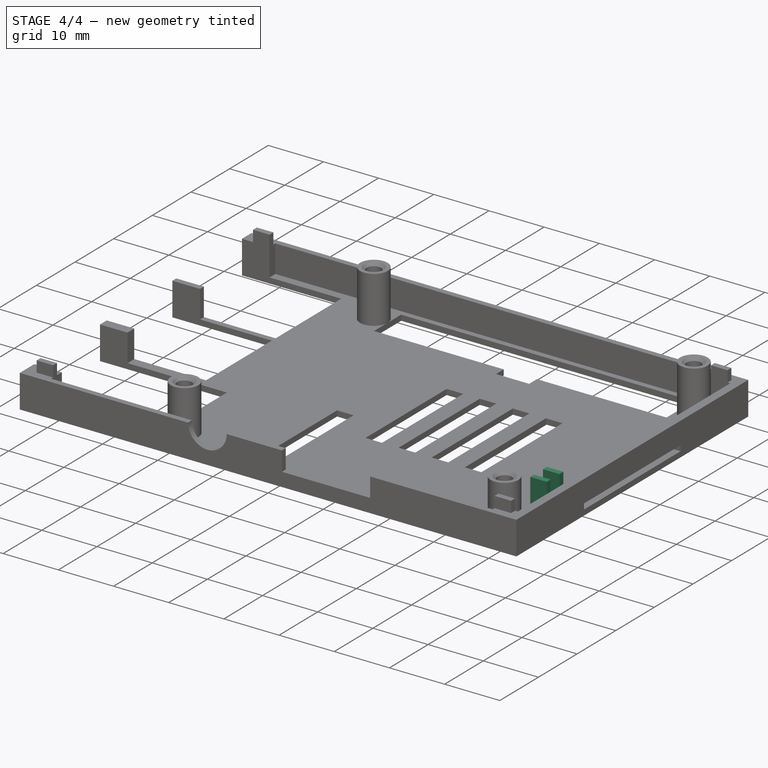
[diagram: stage 4 of 4 — iso view after this stage's code; geometry added in this stage tinted green]
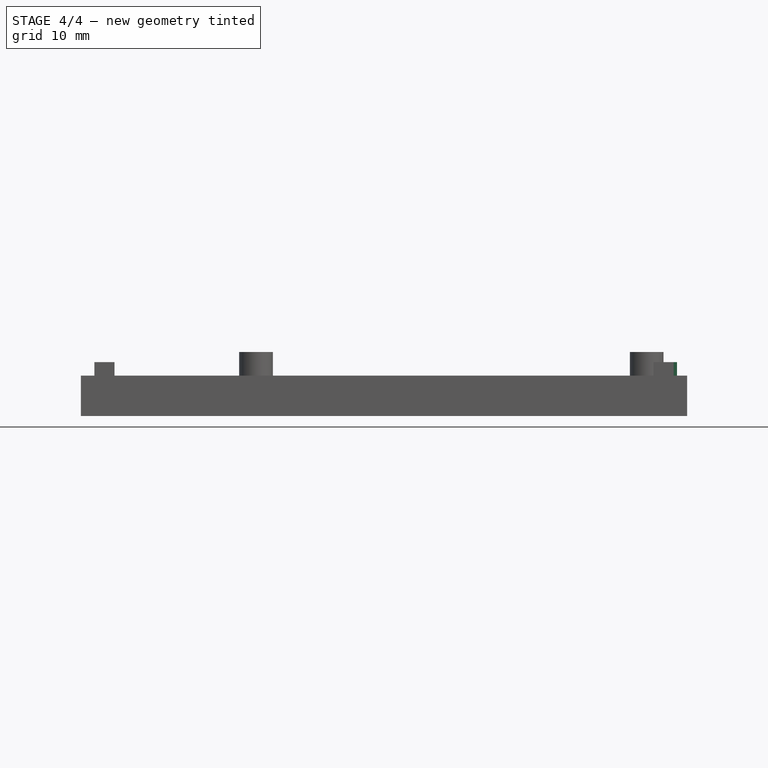
[diagram: stage 4 of 4 — front view after this stage's code; geometry added in this stage tinted green]
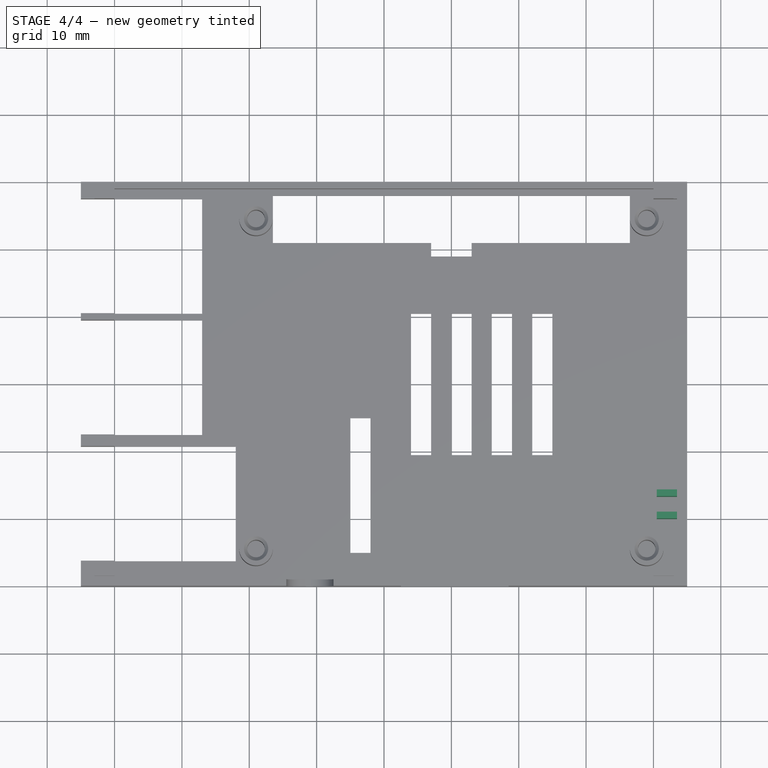
[diagram: stage 4 of 4 — top view after this stage's code; geometry added in this stage tinted green]
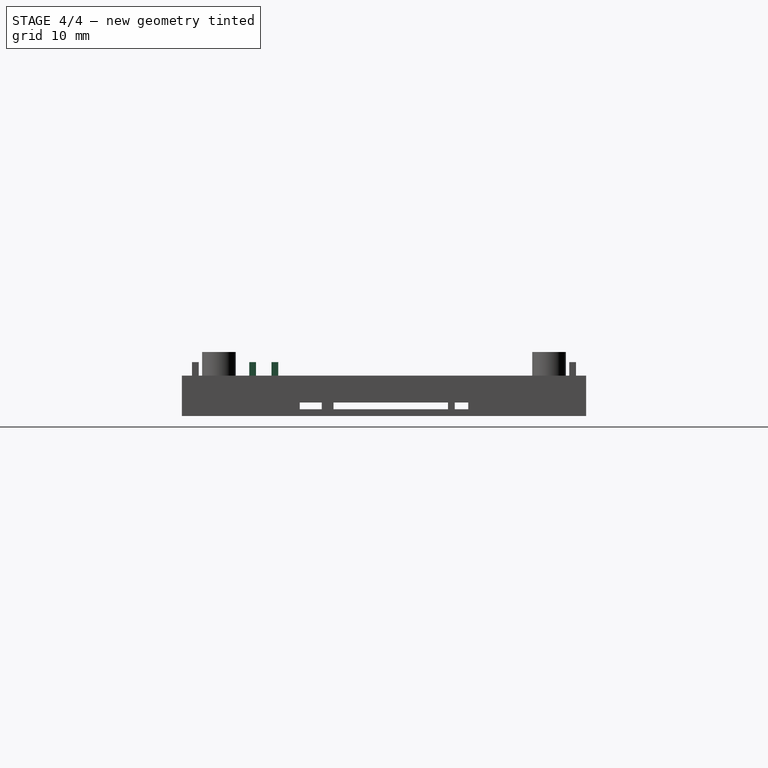
[diagram: stage 4 of 4 — right view after this stage's code; geometry added in this stage tinted green]
FEATURE [Sketcher::SketchObject] Sketch005
  MapMode = 5
  Placement = pos=(0,0,1) rot=(0,0,1;0rad)
  Support = -> [Chamfer]
  sketch-geometry (12):
    g0: LineSegment StartX=40.5 StartY=-15.7 StartZ=0 EndX=43.5 EndY=-15.7 EndZ=0
    g1: LineSegment StartX=43.5 StartY=-15.7 StartZ=0 EndX=43.5 EndY=-16.7 EndZ=0
    g2: LineSegment StartX=43.5 StartY=-16.7 StartZ=0 EndX=40.5 EndY=-16.7 EndZ=0
    g3: LineSegment StartX=40.5 StartY=-16.7 StartZ=0 EndX=40.5 EndY=-15.7 EndZ=0
    g4: LineSegment StartX=40.5 StartY=-19 StartZ=0 EndX=43.5 EndY=-19 EndZ=0
    g5: LineSegment StartX=43.5 StartY=-19 StartZ=0 EndX=43.5 EndY=-20 EndZ=0
    g6: LineSegment StartX=43.5 StartY=-20 StartZ=0 EndX=40.5 EndY=-20 EndZ=0
    g7: LineSegment StartX=40.5 StartY=-20 StartZ=0 EndX=40.5 EndY=-19 EndZ=0
    g8: LineSegment [constr] StartX=43.5 StartY=-16.7 StartZ=0 EndX=43.5 EndY=-19 EndZ=0
    g9: LineSegment [constr] StartX=40.5 StartY=-16.7 StartZ=0 EndX=40.5 EndY=-19 EndZ=0
    g10: GeomPoint [constr] X=40.5 Y=-16.2 Z=0
    g11: GeomPoint [constr] X=40.5 Y=-19.5 Z=0
  constraints (32):
    c: Coincident(g0,g1)
    c: Coincident(g1,g2)
    c: Coincident(g2,g3)
    c: Coincident(g3,g0)
    c: Horizontal(g0)
    c: Horizontal(g2)
    c: Vertical(g1)
    c: Vertical(g3)
    c: Coincident(g4,g5)
    c: Coincident(g5,g6)
    c: Coincident(g6,g7)
    c: Coincident(g7,g4)
    c: Horizontal(g4)
    c: Horizontal(g6)
    c: Vertical(g5)
    c: Vertical(g7)
    c: DistanceX(g-1,g0) = 43.5
    c: DistanceX(g0,g0) = 3
    c: Coincident(g8,g1)
    c: Coincident(g8,g4)
    c: Coincident(g9,g2)
    c: Coincident(g9,g4)
    c: Vertical(g9)
    c: Vertical(g8)
    c: DistanceY(g2,g0) = 1
    c: PointOnObject(g10,g3)
    c: PointOnObject(g11,g7)
    c: Symmetric(g0,g2,g10)
    c: Symmetric(g4,g6,g11)
    c: DistanceY(g11,g10) = 3.3
    c: DistanceY(g6,g4) = 1
    c: DistanceY(g5,g-1) = 20
FEATURE [PartDesign::Pad] Pad004
  Length = 7
  Length2 = 100
  Profile = -> Sketch005
  Type = 0
FEATURE [Part::Cut] Cut
  Base = -> Pad004
  Tool = -> Box
FEATURE [Part::Fillet] Fillet
  Base = -> Cut
  Edges = 1 edges r=1: [Edge144]
FEATURE [Part::Cut] Cut001
  Base = -> Fillet
  Tool = -> Fusion
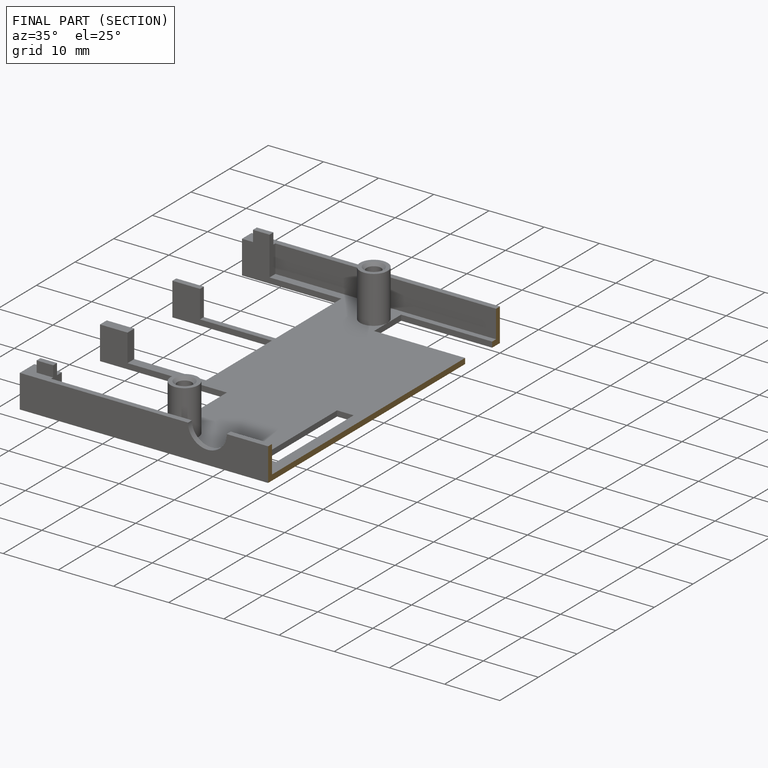
[diagram: finished part — half-section view (interior)]
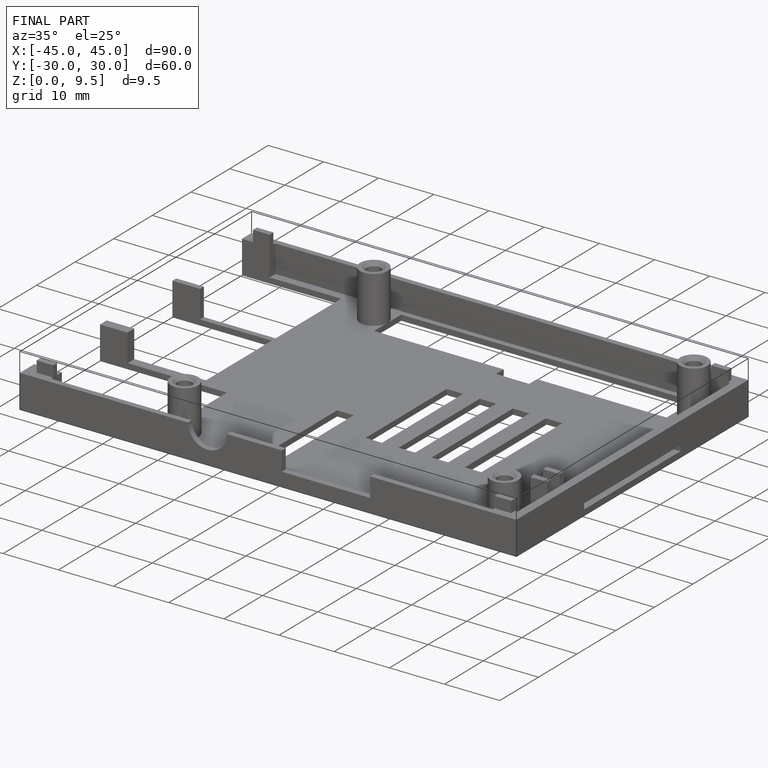
[diagram: finished part — iso view with bounding-box wireframe]
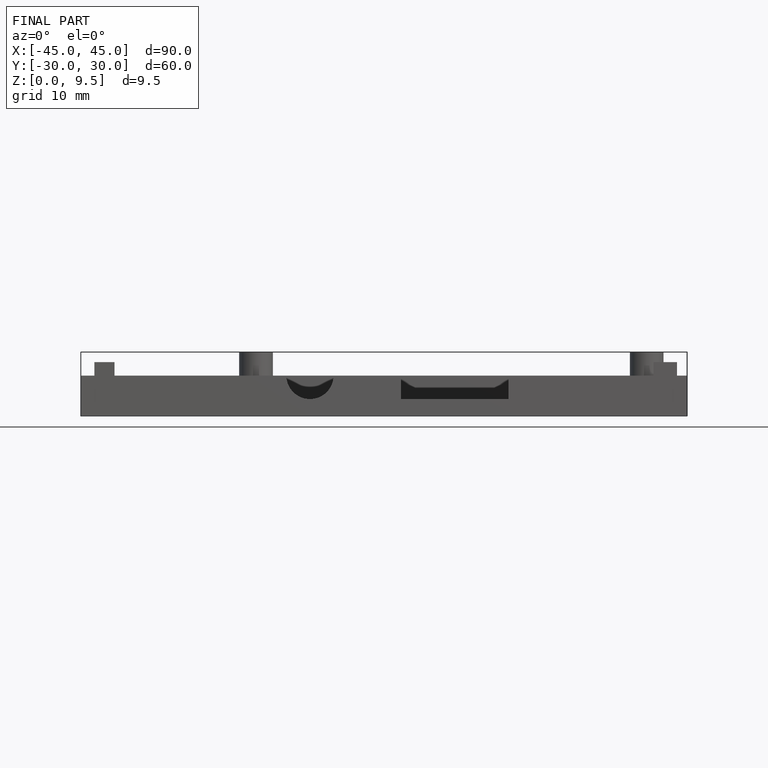
[diagram: finished part — front view with bounding-box wireframe]
